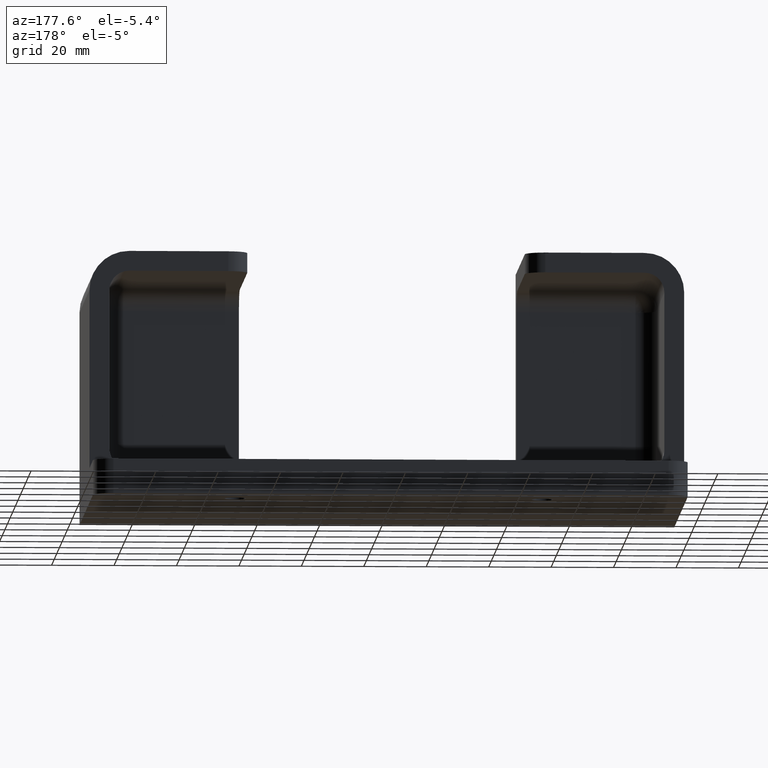
[diagram: clean part render]
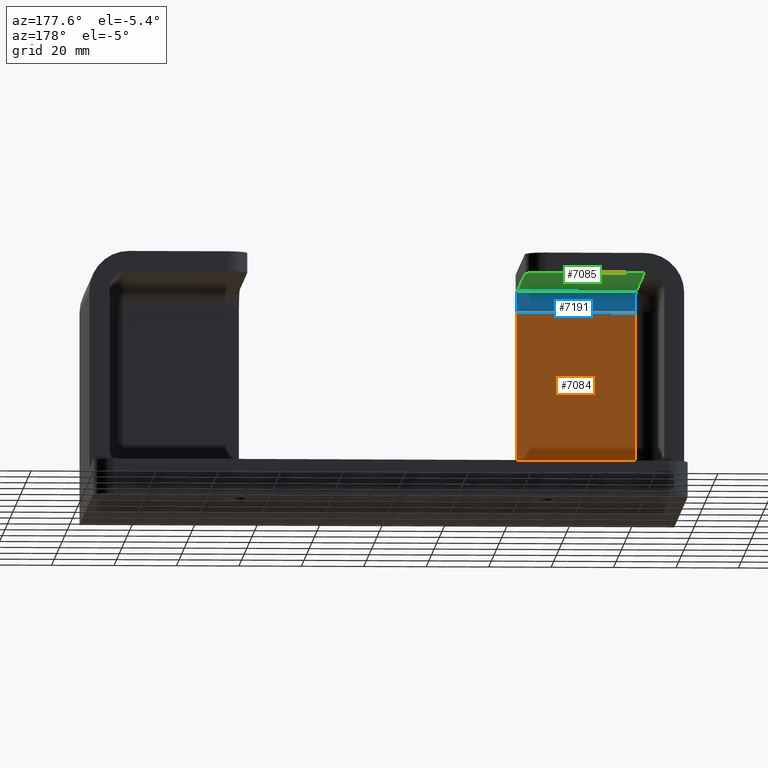
[diagram: same view with three faces highlighted in distinct colors, each labeled with its STEP entity id]
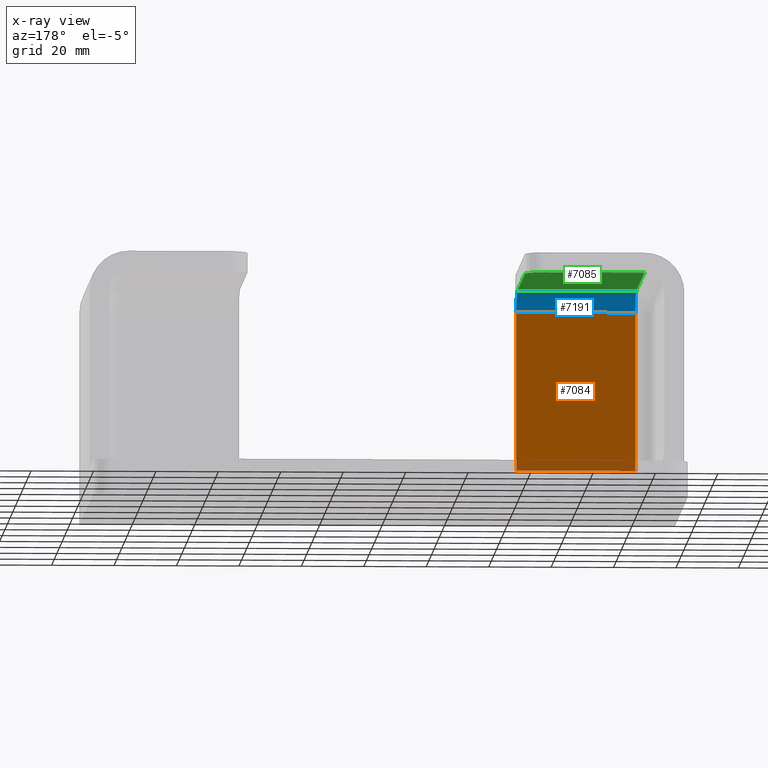
[diagram: x-ray of the same camera — body ghosted, the three highlighted faces saturated]
A machine part, auxiliary view with three faces highlighted in distinct colors.
The next image is the same camera in x-ray (body ghosted, the three faces saturated) — at least one of them is partly hidden behind the body in this view.
Their STEP definitions:

[orange] entity #7084 — the highlighted planar face has unit normal (0, -1, 0).
#100 = ORIENTED_EDGE ( 'NONE', *, *, #2839, .T. ) ;
#107 = ORIENTED_EDGE ( 'NONE', *, *, #2837, .T. ) ;
#134 = EDGE_LOOP ( 'NONE', ( #677, #107, #679, #100 ) ) ;
#578 = VERTEX_POINT ( 'NONE', #2146 ) ;
#579 = VERTEX_POINT ( 'NONE', #2147 ) ;
#677 = ORIENTED_EDGE ( 'NONE', *, *, #2838, .T. ) ;
#679 = ORIENTED_EDGE ( 'NONE', *, *, #2831, .T. ) ;
#1468 = FACE_OUTER_BOUND ( 'NONE', #134, .T. ) ;
#2146 = CARTESIAN_POINT ( 'NONE',  ( -3.250000000000000000, 0.2500000000000000000, 0.6875000000000000000 ) ) ;
#2147 = CARTESIAN_POINT ( 'NONE',  ( -3.249999999999999600, 0.2500000000000000000, 2.687499999999999600 ) ) ;
#2554 = AXIS2_PLACEMENT_3D ( 'NONE', #6328, #6333, #6334 ) ;
#2831 = EDGE_CURVE ( 'NONE', #5428, #5429, #3478, .T. ) ;
#2837 = EDGE_CURVE ( 'NONE', #579, #5428, #3490, .T. ) ;
#2838 = EDGE_CURVE ( 'NONE', #578, #579, #3492, .T. ) ;
#2839 = EDGE_CURVE ( 'NONE', #5429, #578, #3494, .T. ) ;
#3472 = VECTOR ( 'NONE', #6560, 39.37007874015748100 ) ;
#3478 = LINE ( 'NONE', #6551, #3472 ) ;
#3490 = LINE ( 'NONE', #6571, #3491 ) ;
#3491 = VECTOR ( 'NONE', #6572, 39.37007874015748100 ) ;
#3492 = LINE ( 'NONE', #6573, #3493 ) ;
#3493 = VECTOR ( 'NONE', #6574, 39.37007874015748100 ) ;
#3494 = LINE ( 'NONE', #6575, #3495 ) ;
#3495 = VECTOR ( 'NONE', #6576, 39.37007874015748100 ) ;
#5428 = VERTEX_POINT ( 'NONE', #6265 ) ;
#5429 = VERTEX_POINT ( 'NONE', #6266 ) ;
#6265 = CARTESIAN_POINT ( 'NONE',  ( -1.750000000000000000, 0.2500000000000000000, 2.687500000000000400 ) ) ;
#6266 = CARTESIAN_POINT ( 'NONE',  ( -1.750000000000000000, 0.2500000000000000000, 0.6875000000000000000 ) ) ;
#6324 = PLANE ( 'NONE',  #2554 ) ;
#6328 = CARTESIAN_POINT ( 'NONE',  ( -3.250000000000000400, 0.2500000000000000000, 2.687499999999999600 ) ) ;
#6333 = DIRECTION ( 'NONE',  ( 0.0000000000000000000, -1.000000000000000000, 0.0000000000000000000 ) ) ;
#6334 = DIRECTION ( 'NONE',  ( 0.0000000000000000000, -0.0000000000000000000, -1.000000000000000000 ) ) ;
#6551 = CARTESIAN_POINT ( 'NONE',  ( -1.750000000000000000, 0.2500000000000000000, 2.687499999999999600 ) ) ;
#6560 = DIRECTION ( 'NONE',  ( 0.0000000000000000000, 0.0000000000000000000, -1.000000000000000000 ) ) ;
#6571 = CARTESIAN_POINT ( 'NONE',  ( -3.250000000000000400, 0.2500000000000000000, 2.687500000000000400 ) ) ;
#6572 = DIRECTION ( 'NONE',  ( 1.000000000000000000, 0.0000000000000000000, 0.0000000000000000000 ) ) ;
#6573 = CARTESIAN_POINT ( 'NONE',  ( -3.249999999999999600, 0.2500000000000000000, 2.687499999999999600 ) ) ;
#6574 = DIRECTION ( 'NONE',  ( 4.066006316151462300E-016, 0.0000000000000000000, 1.000000000000000000 ) ) ;
#6575 = CARTESIAN_POINT ( 'NONE',  ( -3.250000000000000400, 0.2500000000000000000, 0.6875000000000000000 ) ) ;
#6576 = DIRECTION ( 'NONE',  ( -1.000000000000000000, -0.0000000000000000000, -0.0000000000000000000 ) ) ;
#7084 = ADVANCED_FACE ( 'NONE', ( #1468 ), #6324, .F. ) ;

[blue] entity #7191 — the highlighted cylindrical surface (edge-blend (fillet) strip) has radius 6.35 mm, axis along (1, 0, 0).
#573 = VERTEX_POINT ( 'NONE', #2141 ) ;
#575 = VERTEX_POINT ( 'NONE', #2143 ) ;
#579 = VERTEX_POINT ( 'NONE', #2147 ) ;
#756 = CIRCLE ( 'NONE', #2569, 0.2500000000000000000 ) ;
#780 = CIRCLE ( 'NONE', #2557, 0.2499999999999998100 ) ;
#989 = CARTESIAN_POINT ( 'NONE',  ( -1.750000000000000000, 0.5000000000000000000, 2.687500000000000400 ) ) ;
#994 = DIRECTION ( 'NONE',  ( -1.000000000000000000, -9.106159978880877400E-017, -0.0000000000000000000 ) ) ;
#995 = DIRECTION ( 'NONE',  ( 0.0000000000000000000, -1.000000000000000000, 0.0000000000000000000 ) ) ;
#1053 = CARTESIAN_POINT ( 'NONE',  ( -3.250000000000000400, 0.5000000000000001100, 2.687499999999999600 ) ) ;
#1054 = DIRECTION ( 'NONE',  ( -1.000000000000000000, 0.0000000000000000000, 2.185478394931416900E-015 ) ) ;
#1055 = DIRECTION ( 'NONE',  ( 2.185478394931412200E-015, 0.0000000000000000000, 1.000000000000000000 ) ) ;
#1538 = EDGE_LOOP ( 'NONE', ( #7050, #7049, #7048, #7047 ) ) ;
#1661 = FACE_OUTER_BOUND ( 'NONE', #1538, .T. ) ;
#1666 = CYLINDRICAL_SURFACE ( 'NONE', #2483, 0.2500000000000000600 ) ;
#2141 = CARTESIAN_POINT ( 'NONE',  ( -1.750000000000000000, 0.5000000000000001100, 2.937500000000000000 ) ) ;
#2143 = CARTESIAN_POINT ( 'NONE',  ( -3.250000000000000000, 0.5000000000000001100, 2.937500000000000000 ) ) ;
#2147 = CARTESIAN_POINT ( 'NONE',  ( -3.249999999999999600, 0.2500000000000000000, 2.687499999999999600 ) ) ;
#2483 = AXIS2_PLACEMENT_3D ( 'NONE', #4750, #4758, #4759 ) ;
#2557 = AXIS2_PLACEMENT_3D ( 'NONE', #1053, #1054, #1055 ) ;
#2569 = AXIS2_PLACEMENT_3D ( 'NONE', #989, #994, #995 ) ;
#2832 = EDGE_CURVE ( 'NONE', #573, #575, #3476, .T. ) ;
#2837 = EDGE_CURVE ( 'NONE', #579, #5428, #3490, .T. ) ;
#2905 = EDGE_CURVE ( 'NONE', #5428, #573, #756, .T. ) ;
#2923 = EDGE_CURVE ( 'NONE', #579, #575, #780, .T. ) ;
#3476 = LINE ( 'NONE', #6558, #3480 ) ;
#3480 = VECTOR ( 'NONE', #6562, 39.37007874015748100 ) ;
#3490 = LINE ( 'NONE', #6571, #3491 ) ;
#3491 = VECTOR ( 'NONE', #6572, 39.37007874015748100 ) ;
#4750 = CARTESIAN_POINT ( 'NONE',  ( -3.250000000000000400, 0.5000000000000000000, 2.687500000000000400 ) ) ;
#4758 = DIRECTION ( 'NONE',  ( 1.000000000000000000, 0.0000000000000000000, 0.0000000000000000000 ) ) ;
#4759 = DIRECTION ( 'NONE',  ( 0.0000000000000000000, 0.0000000000000000000, -1.000000000000000000 ) ) ;
#5428 = VERTEX_POINT ( 'NONE', #6265 ) ;
#6265 = CARTESIAN_POINT ( 'NONE',  ( -1.750000000000000000, 0.2500000000000000000, 2.687500000000000400 ) ) ;
#6558 = CARTESIAN_POINT ( 'NONE',  ( -3.250000000000000000, 0.5000000000000001100, 2.937500000000000000 ) ) ;
#6562 = DIRECTION ( 'NONE',  ( -1.000000000000000000, -0.0000000000000000000, -0.0000000000000000000 ) ) ;
#6571 = CARTESIAN_POINT ( 'NONE',  ( -3.250000000000000400, 0.2500000000000000000, 2.687500000000000400 ) ) ;
#6572 = DIRECTION ( 'NONE',  ( 1.000000000000000000, 0.0000000000000000000, 0.0000000000000000000 ) ) ;
#7047 = ORIENTED_EDGE ( 'NONE', *, *, #2837, .F. ) ;
#7048 = ORIENTED_EDGE ( 'NONE', *, *, #2905, .F. ) ;
#7049 = ORIENTED_EDGE ( 'NONE', *, *, #2832, .F. ) ;
#7050 = ORIENTED_EDGE ( 'NONE', *, *, #2923, .T. ) ;
#7191 = ADVANCED_FACE ( 'NONE', ( #1661 ), #1666, .F. ) ;

[green] entity #7085 — the highlighted planar face has unit normal (0, 0, -1).
#123 = EDGE_LOOP ( 'NONE', ( #1890, #662, #675, #524, #672 ) ) ;
#524 = ORIENTED_EDGE ( 'NONE', *, *, #2834, .F. ) ;
#573 = VERTEX_POINT ( 'NONE', #2141 ) ;
#574 = VERTEX_POINT ( 'NONE', #2142 ) ;
#575 = VERTEX_POINT ( 'NONE', #2143 ) ;
#576 = VERTEX_POINT ( 'NONE', #2144 ) ;
#577 = VERTEX_POINT ( 'NONE', #2145 ) ;
#662 = ORIENTED_EDGE ( 'NONE', *, *, #2832, .T. ) ;
#672 = ORIENTED_EDGE ( 'NONE', *, *, #2830, .T. ) ;
#675 = ORIENTED_EDGE ( 'NONE', *, *, #2826, .F. ) ;
#1469 = FACE_OUTER_BOUND ( 'NONE', #123, .T. ) ;
#1890 = ORIENTED_EDGE ( 'NONE', *, *, #2833, .F. ) ;
#2141 = CARTESIAN_POINT ( 'NONE',  ( -1.750000000000000000, 0.5000000000000001100, 2.937500000000000000 ) ) ;
#2142 = CARTESIAN_POINT ( 'NONE',  ( -1.750000000000000000, 2.750000000000000400, 2.937500000000000000 ) ) ;
#2143 = CARTESIAN_POINT ( 'NONE',  ( -3.250000000000000000, 0.5000000000000001100, 2.937500000000000000 ) ) ;
#2144 = CARTESIAN_POINT ( 'NONE',  ( -3.250000000000000400, 3.000000000000000400, 2.937500000000000000 ) ) ;
#2145 = CARTESIAN_POINT ( 'NONE',  ( -2.000000000000000400, 3.000000000000000400, 2.937500000000000000 ) ) ;
#2551 = AXIS2_PLACEMENT_3D ( 'NONE', #6325, #6337, #6338 ) ;
#2592 = AXIS2_PLACEMENT_3D ( 'NONE', #6554, #6556, #6557 ) ;
#2826 = EDGE_CURVE ( 'NONE', #576, #575, #3454, .T. ) ;
#2830 = EDGE_CURVE ( 'NONE', #577, #574, #3479, .T. ) ;
#2832 = EDGE_CURVE ( 'NONE', #573, #575, #3476, .T. ) ;
#2833 = EDGE_CURVE ( 'NONE', #573, #574, #3482, .T. ) ;
#2834 = EDGE_CURVE ( 'NONE', #577, #576, #3484, .T. ) ;
#3454 = LINE ( 'NONE', #6544, #3470 ) ;
#3470 = VECTOR ( 'NONE', #6547, 39.37007874015748100 ) ;
#3476 = LINE ( 'NONE', #6558, #3480 ) ;
#3479 = CIRCLE ( 'NONE', #2592, 0.2500000000000000600 ) ;
#3480 = VECTOR ( 'NONE', #6562, 39.37007874015748100 ) ;
#3482 = LINE ( 'NONE', #6563, #3483 ) ;
#3483 = VECTOR ( 'NONE', #6564, 39.37007874015748100 ) ;
#3484 = LINE ( 'NONE', #6565, #3485 ) ;
#3485 = VECTOR ( 'NONE', #6566, 39.37007874015748100 ) ;
#6325 = CARTESIAN_POINT ( 'NONE',  ( -3.250000000000000000, 4.299999999999999800, 2.937500000000000000 ) ) ;
#6332 = PLANE ( 'NONE',  #2551 ) ;
#6337 = DIRECTION ( 'NONE',  ( 0.0000000000000000000, 0.0000000000000000000, -1.000000000000000000 ) ) ;
#6338 = DIRECTION ( 'NONE',  ( -1.000000000000000000, 0.0000000000000000000, -0.0000000000000000000 ) ) ;
#6544 = CARTESIAN_POINT ( 'NONE',  ( -3.250000000000000000, 4.299999999999999800, 2.937500000000000000 ) ) ;
#6547 = DIRECTION ( 'NONE',  ( -0.0000000000000000000, -1.000000000000000000, -0.0000000000000000000 ) ) ;
#6554 = CARTESIAN_POINT ( 'NONE',  ( -2.000000000000000400, 2.750000000000000400, 2.937499999999999100 ) ) ;
#6556 = DIRECTION ( 'NONE',  ( 0.0000000000000000000, 0.0000000000000000000, -1.000000000000000000 ) ) ;
#6557 = DIRECTION ( 'NONE',  ( -1.000000000000000000, 0.0000000000000000000, 0.0000000000000000000 ) ) ;
#6558 = CARTESIAN_POINT ( 'NONE',  ( -3.250000000000000000, 0.5000000000000001100, 2.937500000000000000 ) ) ;
#6562 = DIRECTION ( 'NONE',  ( -1.000000000000000000, -0.0000000000000000000, -0.0000000000000000000 ) ) ;
#6563 = CARTESIAN_POINT ( 'NONE',  ( -1.750000000000000200, 4.299999999999999800, 2.937500000000000000 ) ) ;
#6564 = DIRECTION ( 'NONE',  ( -9.106159978880877400E-017, 1.000000000000000000, 0.0000000000000000000 ) ) ;
#6565 = CARTESIAN_POINT ( 'NONE',  ( -3.250000000000000000, 3.000000000000000400, 2.937500000000000000 ) ) ;
#6566 = DIRECTION ( 'NONE',  ( -1.000000000000000000, 0.0000000000000000000, 0.0000000000000000000 ) ) ;
#7085 = ADVANCED_FACE ( 'NONE', ( #1469 ), #6332, .T. ) ;